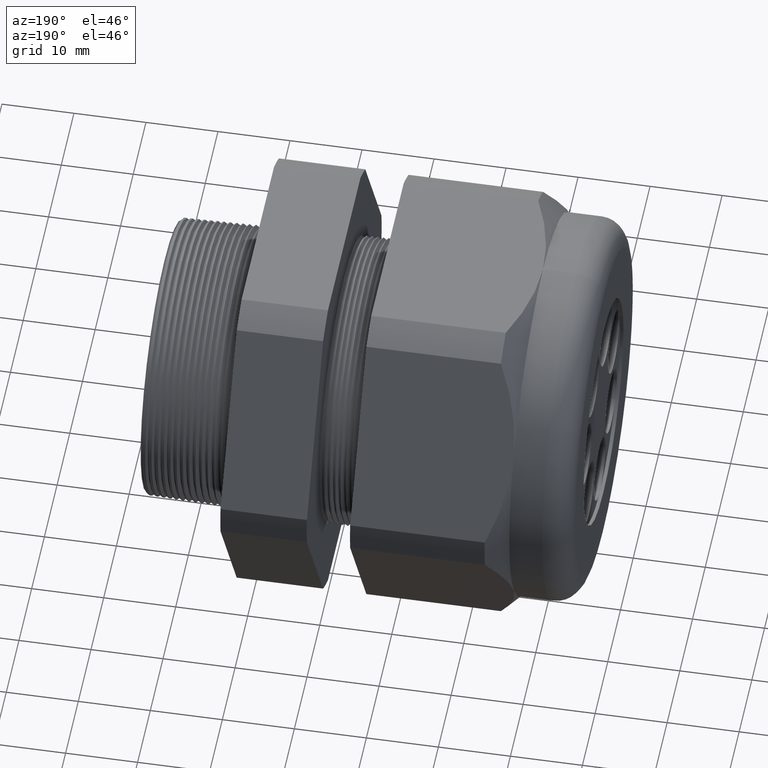
[diagram: clean part render]
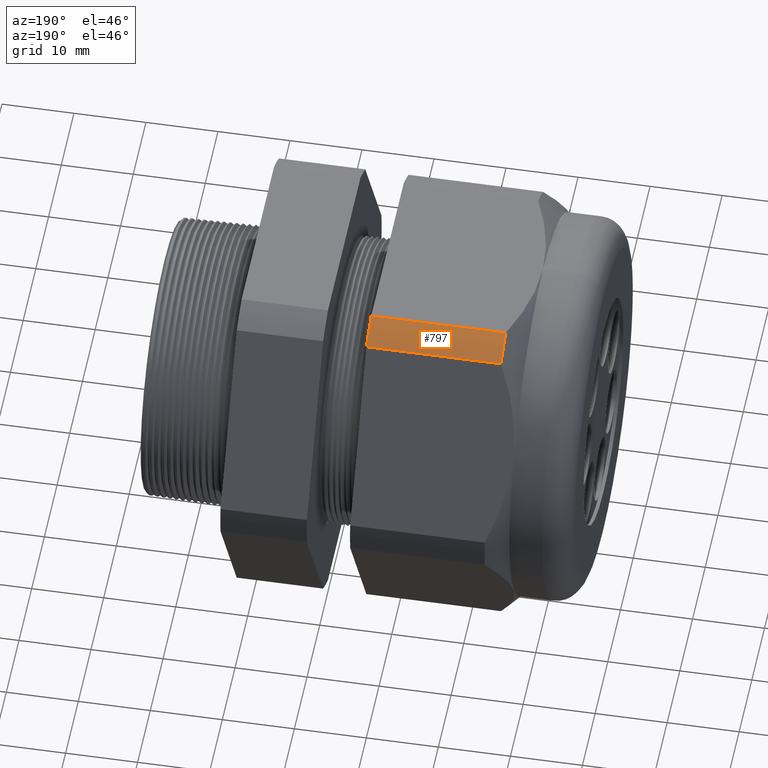
[diagram: same view with one face highlighted and labeled with its STEP entity id]
A machine part, auxiliary view. The second image highlights one B-rep face of the part: STEP entity #797.
In plain terms, the highlighted cylindrical surface (partial cylindrical patch) has radius 29.4627 mm, axis along (-1, 0, 0).
Its self-contained STEP definition (entity closure, byte-faithful):
#716 = EDGE_LOOP ( 'NONE', ( #770, #774, #776, #777 ) ) ;
#770 = ORIENTED_EDGE ( 'NONE', *, *, #771, .T. ) ;
#771 = EDGE_CURVE ( 'NONE', #772, #773, #2346, .T. ) ;
#772 = VERTEX_POINT ( 'NONE', #2342 ) ;
#773 = VERTEX_POINT ( 'NONE', #2341 ) ;
#774 = ORIENTED_EDGE ( 'NONE', *, *, #775, .T. ) ;
#775 = EDGE_CURVE ( 'NONE', #773, #789, #2339, .T. ) ;
#776 = ORIENTED_EDGE ( 'NONE', *, *, #787, .F. ) ;
#777 = ORIENTED_EDGE ( 'NONE', *, *, #778, .F. ) ;
#778 = EDGE_CURVE ( 'NONE', #772, #788, #2398, .T. ) ;
#787 = EDGE_CURVE ( 'NONE', #788, #789, #2376, .T. ) ;
#788 = VERTEX_POINT ( 'NONE', #2372 ) ;
#789 = VERTEX_POINT ( 'NONE', #2371 ) ;
#797 = ADVANCED_FACE ( 'NONE', ( #2404 ), #2403, .T. ) ;
#2335 = DIRECTION ( 'NONE',  ( 0.0000000000000000000, 0.0000000000000000000, -1.000000000000000000 ) ) ;
#2336 = DIRECTION ( 'NONE',  ( 1.000000000000000000, 0.0000000000000000000, 0.0000000000000000000 ) ) ;
#2337 = CARTESIAN_POINT ( 'NONE',  ( -1.754342000000000300, 0.0000000000000000000, 0.0000000000000000000 ) ) ;
#2338 = AXIS2_PLACEMENT_3D ( 'NONE', #2337, #2336, #2335 ) ;
#2339 = CIRCLE ( 'NONE', #2338, 1.159950000000000000 ) ;
#2341 = CARTESIAN_POINT ( 'NONE',  ( -1.754342000000000300, 0.6532729870224187600, 0.9584979952648866600 ) ) ;
#2342 = CARTESIAN_POINT ( 'NONE',  ( -1.018802799999999800, 0.6532729870224187600, 0.9584979952648866600 ) ) ;
#2343 = DIRECTION ( 'NONE',  ( -1.000000000000000000, 0.0000000000000000000, 0.0000000000000000000 ) ) ;
#2344 = VECTOR ( 'NONE', #2343, 39.37007874015748100 ) ;
#2345 = CARTESIAN_POINT ( 'NONE',  ( 0.2000000000000000400, 0.6532729870224187600, 0.9584979952648866600 ) ) ;
#2346 = LINE ( 'NONE', #2345, #2344 ) ;
#2371 = CARTESIAN_POINT ( 'NONE',  ( -1.754342000000000300, 0.5034471198646388600, 1.044999999999999900 ) ) ;
#2372 = CARTESIAN_POINT ( 'NONE',  ( -1.018802799999999800, 0.5034471198646388600, 1.044999999999999900 ) ) ;
#2373 = DIRECTION ( 'NONE',  ( -1.000000000000000000, 0.0000000000000000000, 0.0000000000000000000 ) ) ;
#2374 = VECTOR ( 'NONE', #2373, 39.37007874015748100 ) ;
#2375 = CARTESIAN_POINT ( 'NONE',  ( 0.2000000000000000400, 0.5034471198646388600, 1.044999999999999900 ) ) ;
#2376 = LINE ( 'NONE', #2375, #2374 ) ;
#2394 = DIRECTION ( 'NONE',  ( 0.0000000000000000000, 0.0000000000000000000, -1.000000000000000000 ) ) ;
#2395 = DIRECTION ( 'NONE',  ( 1.000000000000000000, 0.0000000000000000000, 0.0000000000000000000 ) ) ;
#2396 = CARTESIAN_POINT ( 'NONE',  ( -1.018802799999999800, 0.0000000000000000000, 0.0000000000000000000 ) ) ;
#2397 = AXIS2_PLACEMENT_3D ( 'NONE', #2396, #2395, #2394 ) ;
#2398 = CIRCLE ( 'NONE', #2397, 1.159950000000000000 ) ;
#2399 = DIRECTION ( 'NONE',  ( -1.000000000000000000, 0.0000000000000000000, 0.0000000000000000000 ) ) ;
#2400 = CARTESIAN_POINT ( 'NONE',  ( 0.2000000000000000400, 0.0000000000000000000, 0.0000000000000000000 ) ) ;
#2401 = AXIS2_PLACEMENT_3D ( 'NONE', #2400, #2399, #2463 ) ;
#2403 = CYLINDRICAL_SURFACE ( 'NONE', #2401, 1.159950000000000000 ) ;
#2404 = FACE_OUTER_BOUND ( 'NONE', #716, .T. ) ;
#2463 = DIRECTION ( 'NONE',  ( 0.0000000000000000000, 0.0000000000000000000, 1.000000000000000000 ) ) ;